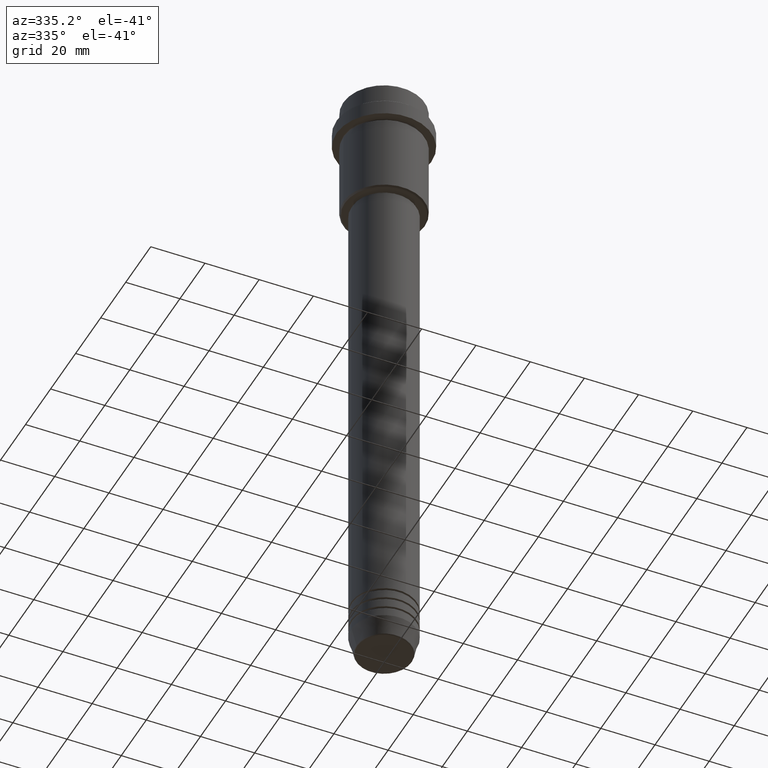
[diagram: clean part render]
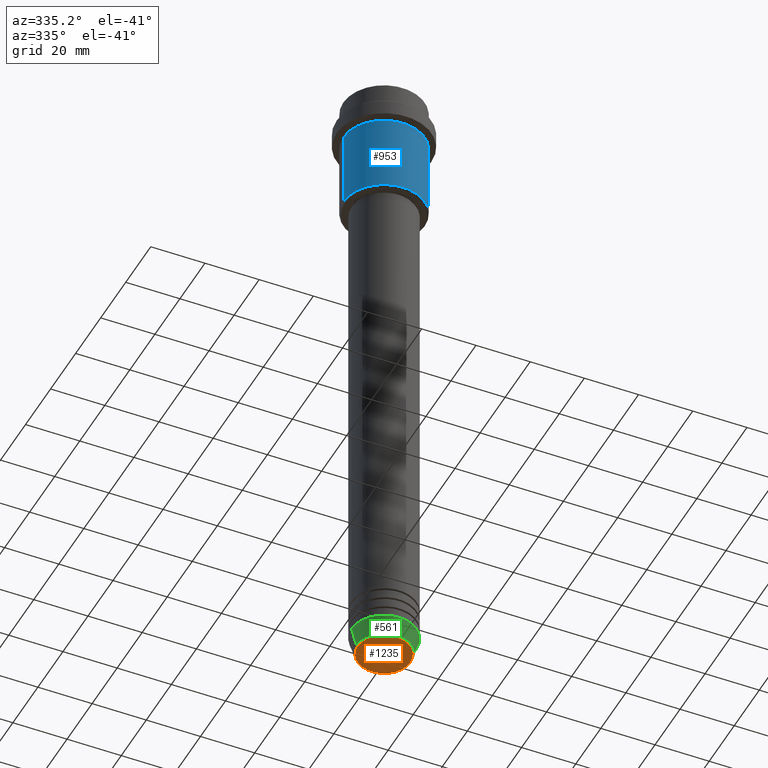
[diagram: same view with three faces highlighted in distinct colors, each labeled with its STEP entity id]
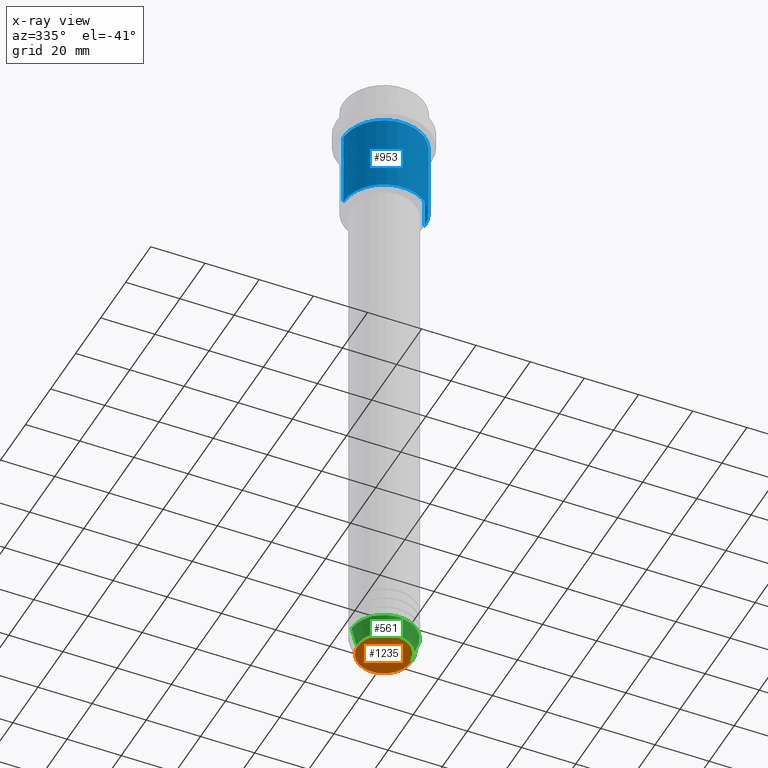
[diagram: x-ray of the same camera — body ghosted, the three highlighted faces saturated]
A machine part, auxiliary view with three faces highlighted in distinct colors.
The next image is the same camera in x-ray (body ghosted, the three faces saturated) — at least one of them is partly hidden behind the body in this view.
Their STEP definitions:

[orange] entity #1235 — the highlighted planar face has unit normal (0, -0, 1).
#32 = CARTESIAN_POINT ( 'NONE',  ( 9.740692158992663607, 0.000000000000000000, -240.0000000000000568 ) ) ;
#35 = AXIS2_PLACEMENT_3D ( 'NONE', #233, #787, #1226 ) ;
#81 = DIRECTION ( 'NONE',  ( 1.000000000000000000, 0.000000000000000000, 0.000000000000000000 ) ) ;
#231 = VERTEX_POINT ( 'NONE', #32 ) ;
#233 = CARTESIAN_POINT ( 'NONE',  ( 0.000000000000000000, 0.000000000000000000, -240.0000000000000568 ) ) ;
#330 = CARTESIAN_POINT ( 'NONE',  ( -9.740692158992663607, 1.222463696683475393E-15, -240.0000000000000568 ) ) ;
#352 = CIRCLE ( 'NONE', #1406, 9.740692158992663607 ) ;
#373 = ORIENTED_EDGE ( 'NONE', *, *, #516, .T. ) ;
#516 = EDGE_CURVE ( 'NONE', #627, #231, #580, .T. ) ;
#580 = CIRCLE ( 'NONE', #781, 9.740692158992663607 ) ;
#627 = VERTEX_POINT ( 'NONE', #330 ) ;
#777 = PLANE ( 'NONE',  #35 ) ;
#781 = AXIS2_PLACEMENT_3D ( 'NONE', #855, #947, #81 ) ;
#787 = DIRECTION ( 'NONE',  ( 0.000000000000000000, -0.000000000000000000, 1.000000000000000000 ) ) ;
#855 = CARTESIAN_POINT ( 'NONE',  ( 0.000000000000000000, 0.000000000000000000, -240.0000000000000568 ) ) ;
#858 = EDGE_LOOP ( 'NONE', ( #1347, #373 ) ) ;
#933 = CARTESIAN_POINT ( 'NONE',  ( 0.000000000000000000, 0.000000000000000000, -240.0000000000000568 ) ) ;
#947 = DIRECTION ( 'NONE',  ( 0.000000000000000000, 0.000000000000000000, -1.000000000000000000 ) ) ;
#1029 = DIRECTION ( 'NONE',  ( 0.000000000000000000, 0.000000000000000000, -1.000000000000000000 ) ) ;
#1137 = DIRECTION ( 'NONE',  ( 1.000000000000000000, 0.000000000000000000, 0.000000000000000000 ) ) ;
#1226 = DIRECTION ( 'NONE',  ( 1.000000000000000000, 0.000000000000000000, 0.000000000000000000 ) ) ;
#1235 = ADVANCED_FACE ( 'NONE', ( #1326 ), #777, .F. ) ;
#1301 = EDGE_CURVE ( 'NONE', #231, #627, #352, .T. ) ;
#1326 = FACE_OUTER_BOUND ( 'NONE', #858, .T. ) ;
#1347 = ORIENTED_EDGE ( 'NONE', *, *, #1301, .T. ) ;
#1406 = AXIS2_PLACEMENT_3D ( 'NONE', #933, #1029, #1137 ) ;

[blue] entity #953 — the highlighted cylindrical surface (partial cylindrical patch) has radius 15 mm, axis along (-0, -0, 1).
#106 = DIRECTION ( 'NONE',  ( -0.000000000000000000, -0.000000000000000000, 1.000000000000000000 ) ) ;
#112 = CYLINDRICAL_SURFACE ( 'NONE', #851, 15.00000000000000000 ) ;
#182 = EDGE_CURVE ( 'NONE', #869, #353, #1096, .T. ) ;
#224 = EDGE_CURVE ( 'NONE', #353, #469, #1328, .T. ) ;
#286 = EDGE_CURVE ( 'NONE', #1372, #469, #827, .T. ) ;
#332 = DIRECTION ( 'NONE',  ( 1.000000000000000000, 0.000000000000000000, 0.000000000000000000 ) ) ;
#340 = CARTESIAN_POINT ( 'NONE',  ( 15.00000000000000000, 0.000000000000000000, 0.000000000000000000 ) ) ;
#351 = DIRECTION ( 'NONE',  ( -0.000000000000000000, -0.000000000000000000, 1.000000000000000000 ) ) ;
#353 = VERTEX_POINT ( 'NONE', #812 ) ;
#368 = CARTESIAN_POINT ( 'NONE',  ( -15.00000000000000000, 1.836970198721029589E-15, 0.000000000000000000 ) ) ;
#384 = CARTESIAN_POINT ( 'NONE',  ( 15.00000000000000178, 0.000000000000000000, -16.00000000000000000 ) ) ;
#469 = VERTEX_POINT ( 'NONE', #384 ) ;
#567 = DIRECTION ( 'NONE',  ( -0.000000000000000000, -0.000000000000000000, 1.000000000000000000 ) ) ;
#573 = DIRECTION ( 'NONE',  ( 1.000000000000000000, 0.000000000000000000, 0.000000000000000000 ) ) ;
#672 = CARTESIAN_POINT ( 'NONE',  ( 0.000000000000000000, 0.000000000000000000, 0.000000000000000000 ) ) ;
#713 = CARTESIAN_POINT ( 'NONE',  ( -15.00000000000000355, 1.836970198721029983E-15, -16.00000000000000000 ) ) ;
#724 = ORIENTED_EDGE ( 'NONE', *, *, #1366, .F. ) ;
#772 = CARTESIAN_POINT ( 'NONE',  ( 0.000000000000000000, 0.000000000000000000, -16.00000000000000000 ) ) ;
#812 = CARTESIAN_POINT ( 'NONE',  ( 15.00000000000000000, 0.000000000000000000, -44.49999999999997868 ) ) ;
#827 = CIRCLE ( 'NONE', #1190, 15.00000000000000178 ) ;
#851 = AXIS2_PLACEMENT_3D ( 'NONE', #672, #1334, #332 ) ;
#869 = VERTEX_POINT ( 'NONE', #927 ) ;
#871 = VECTOR ( 'NONE', #1016, 1000.000000000000000 ) ;
#919 = ORIENTED_EDGE ( 'NONE', *, *, #286, .F. ) ;
#927 = CARTESIAN_POINT ( 'NONE',  ( -15.00000000000000000, 1.836970198721029589E-15, -44.49999999999997868 ) ) ;
#935 = ORIENTED_EDGE ( 'NONE', *, *, #182, .T. ) ;
#953 = ADVANCED_FACE ( 'NONE', ( #1327 ), #112, .T. ) ;
#960 = CARTESIAN_POINT ( 'NONE',  ( 0.000000000000000000, 0.000000000000000000, -44.49999999999997868 ) ) ;
#1016 = DIRECTION ( 'NONE',  ( -0.000000000000000000, -0.000000000000000000, 1.000000000000000000 ) ) ;
#1023 = LINE ( 'NONE', #368, #871 ) ;
#1031 = VECTOR ( 'NONE', #567, 1000.000000000000000 ) ;
#1096 = CIRCLE ( 'NONE', #1335, 15.00000000000000000 ) ;
#1140 = ORIENTED_EDGE ( 'NONE', *, *, #224, .T. ) ;
#1190 = AXIS2_PLACEMENT_3D ( 'NONE', #772, #351, #573 ) ;
#1317 = EDGE_LOOP ( 'NONE', ( #724, #935, #1140, #919 ) ) ;
#1327 = FACE_OUTER_BOUND ( 'NONE', #1317, .T. ) ;
#1328 = LINE ( 'NONE', #340, #1031 ) ;
#1334 = DIRECTION ( 'NONE',  ( -0.000000000000000000, -0.000000000000000000, 1.000000000000000000 ) ) ;
#1335 = AXIS2_PLACEMENT_3D ( 'NONE', #960, #106, #1417 ) ;
#1366 = EDGE_CURVE ( 'NONE', #869, #1372, #1023, .T. ) ;
#1372 = VERTEX_POINT ( 'NONE', #713 ) ;
#1417 = DIRECTION ( 'NONE',  ( -1.000000000000000000, 0.000000000000000000, 0.000000000000000000 ) ) ;

[green] entity #561 — the highlighted conical surface has half-angle 15 deg.
#7 = CARTESIAN_POINT ( 'NONE',  ( 12.00000000000000000, 0.000000000000000000, -233.0000000000000284 ) ) ;
#15 = DIRECTION ( 'NONE',  ( 1.000000000000000000, 0.000000000000000000, 0.000000000000000000 ) ) ;
#76 = CONICAL_SURFACE ( 'NONE', #259, 12.00000000000000000, 0.2617993877991491303 ) ;
#109 = EDGE_CURVE ( 'NONE', #365, #253, #543, .T. ) ;
#139 = VERTEX_POINT ( 'NONE', #1292 ) ;
#242 = DIRECTION ( 'NONE',  ( 0.2588190451025205174, 0.000000000000000000, 0.9659258262890684232 ) ) ;
#253 = VERTEX_POINT ( 'NONE', #903 ) ;
#259 = AXIS2_PLACEMENT_3D ( 'NONE', #1072, #1290, #1403 ) ;
#280 = AXIS2_PLACEMENT_3D ( 'NONE', #1332, #873, #15 ) ;
#307 = DIRECTION ( 'NONE',  ( -0.2588190451025205174, 3.169619151431761243E-17, 0.9659258262890684232 ) ) ;
#309 = DIRECTION ( 'NONE',  ( 1.000000000000000000, 0.000000000000000000, 0.000000000000000000 ) ) ;
#318 = AXIS2_PLACEMENT_3D ( 'NONE', #420, #1081, #309 ) ;
#365 = VERTEX_POINT ( 'NONE', #1264 ) ;
#420 = CARTESIAN_POINT ( 'NONE',  ( 0.000000000000000000, 0.000000000000000000, -233.0000000000000284 ) ) ;
#518 = ORIENTED_EDGE ( 'NONE', *, *, #576, .F. ) ;
#543 = LINE ( 'NONE', #1390, #1166 ) ;
#561 = ADVANCED_FACE ( 'NONE', ( #648 ), #76, .T. ) ;
#576 = EDGE_CURVE ( 'NONE', #253, #139, #1098, .T. ) ;
#646 = EDGE_CURVE ( 'NONE', #365, #647, #666, .T. ) ;
#647 = VERTEX_POINT ( 'NONE', #684 ) ;
#648 = FACE_OUTER_BOUND ( 'NONE', #808, .T. ) ;
#666 = CIRCLE ( 'NONE', #280, 10.22365507213720015 ) ;
#684 = CARTESIAN_POINT ( 'NONE',  ( 10.22365507213720015, 0.000000000000000000, -239.6294095225512990 ) ) ;
#739 = VECTOR ( 'NONE', #242, 1000.000000000000114 ) ;
#740 = ORIENTED_EDGE ( 'NONE', *, *, #646, .T. ) ;
#808 = EDGE_LOOP ( 'NONE', ( #1135, #740, #1109, #518 ) ) ;
#873 = DIRECTION ( 'NONE',  ( -0.000000000000000000, -0.000000000000000000, 1.000000000000000000 ) ) ;
#903 = CARTESIAN_POINT ( 'NONE',  ( -12.00000000000000000, 1.469576158976823947E-15, -233.0000000000000284 ) ) ;
#978 = LINE ( 'NONE', #7, #739 ) ;
#1072 = CARTESIAN_POINT ( 'NONE',  ( 0.000000000000000000, 0.000000000000000000, -233.0000000000000284 ) ) ;
#1079 = EDGE_CURVE ( 'NONE', #647, #139, #978, .T. ) ;
#1081 = DIRECTION ( 'NONE',  ( -0.000000000000000000, -0.000000000000000000, 1.000000000000000000 ) ) ;
#1098 = CIRCLE ( 'NONE', #318, 12.00000000000000000 ) ;
#1109 = ORIENTED_EDGE ( 'NONE', *, *, #1079, .T. ) ;
#1135 = ORIENTED_EDGE ( 'NONE', *, *, #109, .F. ) ;
#1166 = VECTOR ( 'NONE', #307, 1000.000000000000114 ) ;
#1264 = CARTESIAN_POINT ( 'NONE',  ( -10.22365507213720015, 1.360806402472383139E-15, -239.6294095225512990 ) ) ;
#1290 = DIRECTION ( 'NONE',  ( -0.000000000000000000, -0.000000000000000000, 1.000000000000000000 ) ) ;
#1292 = CARTESIAN_POINT ( 'NONE',  ( 12.00000000000000000, 0.000000000000000000, -233.0000000000000284 ) ) ;
#1332 = CARTESIAN_POINT ( 'NONE',  ( 0.000000000000000000, 0.000000000000000000, -239.6294095225512990 ) ) ;
#1390 = CARTESIAN_POINT ( 'NONE',  ( -12.00000000000000000, 1.469576158976823947E-15, -233.0000000000000284 ) ) ;
#1403 = DIRECTION ( 'NONE',  ( 1.000000000000000000, 0.000000000000000000, 0.000000000000000000 ) ) ;